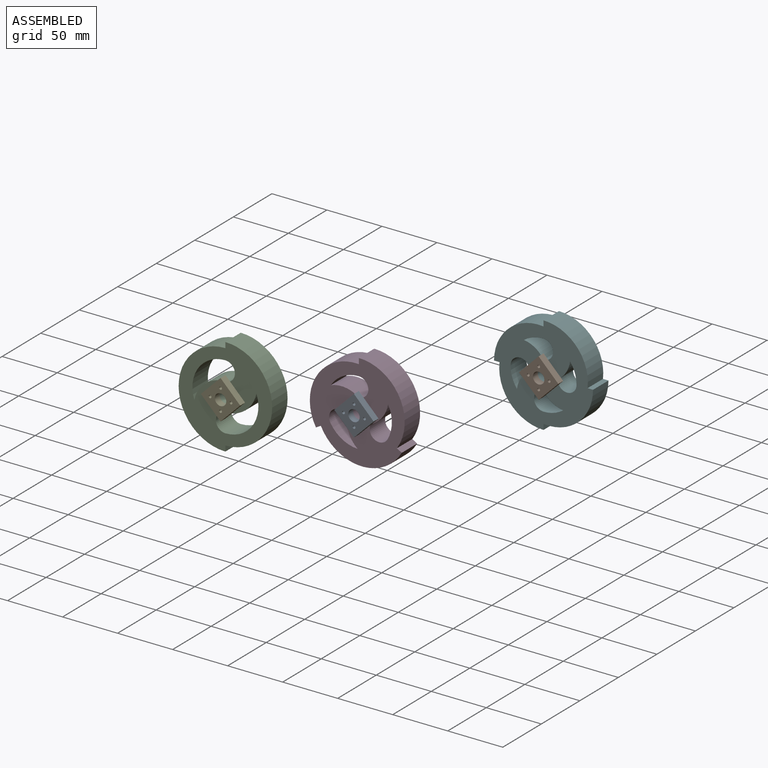
[diagram: assembled view]
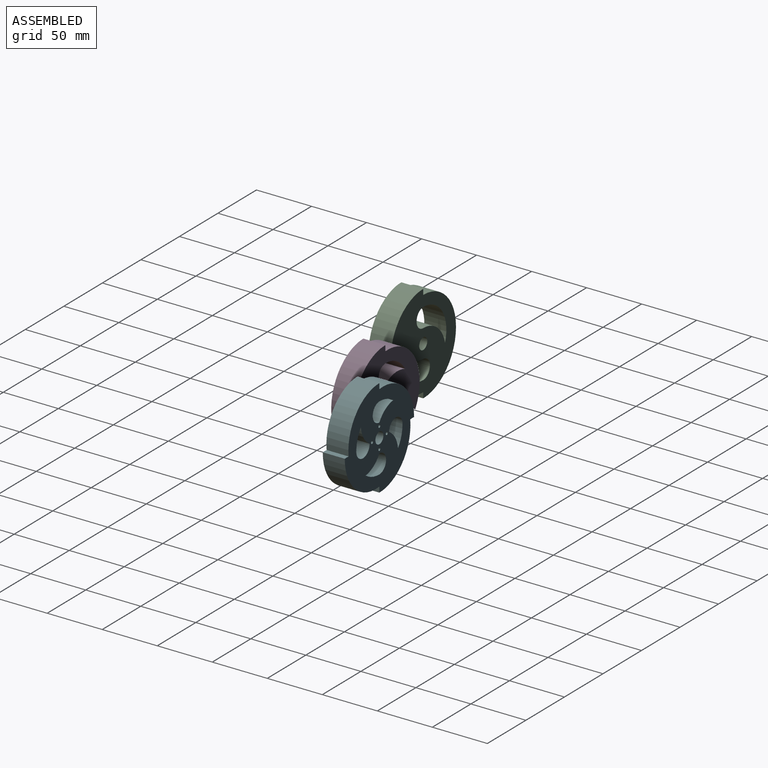
[diagram: assembled view, second angle]
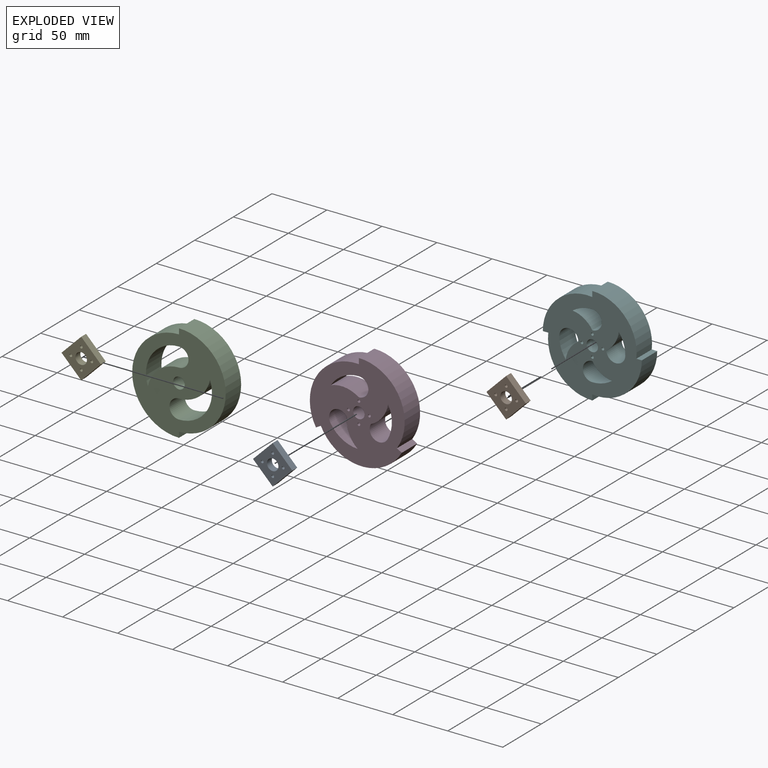
[diagram: exploded view]
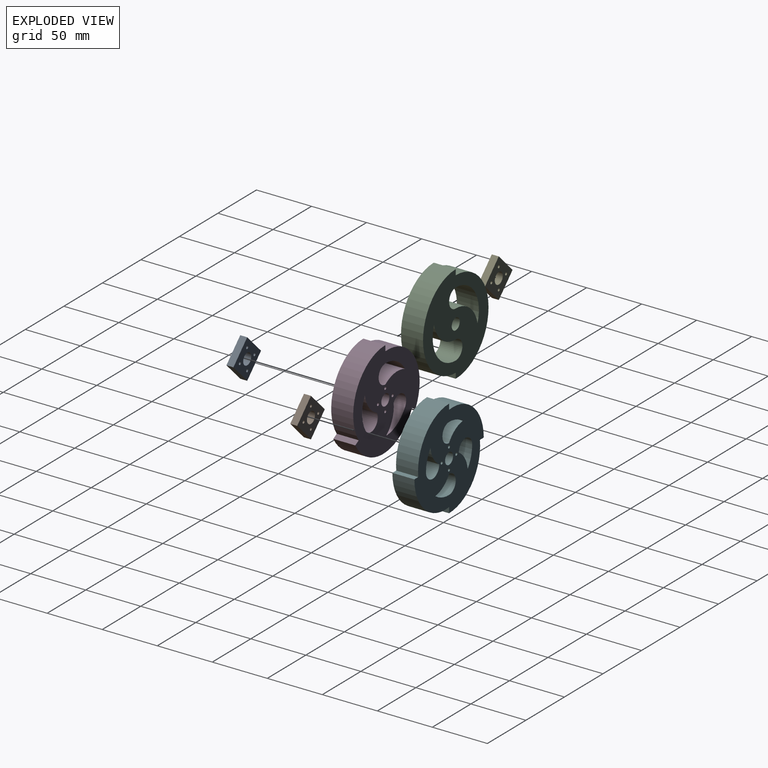
[diagram: exploded view, second angle]
ASSEMBLY  parts=6 mates=3
PART A: 11 faces, bbox 35.8x6.4x35.8 mm
  f0: plane 17.88x17.88mm, normal (-0.71,0,0.71), area 160.6mm2, adj f1,f6,f9,f10
  f1: plane 17.88x17.88mm, normal (-0.71,0,-0.71), area 160.6mm2, adj f0,f2,f9,f10
  f2: plane 17.88x17.88mm, normal (0.71,0,-0.71), area 160.6mm2, adj f1,f6,f9,f10
  f3: cylinder r=1.27mm len=6.35mm, axis (0,1,0), area 50.7mm2, adj f9,f10
  f4: cylinder r=1.27mm len=6.35mm, axis (0,1,0), area 50.7mm2, adj f9,f10
  f5: cylinder r=1.27mm len=6.35mm, axis (0,1,0), area 50.7mm2, adj f9,f10
  f6: plane 17.88x17.88mm, normal (0.71,0,0.71), area 160.6mm2, adj f0,f2,f9,f10
  f7: cylinder r=1.27mm len=6.35mm, axis (0,1,0), area 50.7mm2, adj f9,f10
  f8: cylinder r=5.21mm len=10.41mm, axis (0,1,0), area 207.8mm2, adj f9,f10
  f9: plane 35.76x35.76mm, normal (0,-1,0), area 534mm2, adj f0,f1,f2,f3,f4,f5,f6,f7
  f10: plane 35.76x35.76mm, normal (0,1,0), area 534mm2, adj f0,f1,f2,f3,f4,f5,f6,f7
PART B: same geometry as A
PART C: 13 faces, bbox 85x20x90 mm
  f0: cylinder r=30mm len=40.17mm, axis (0,1,0), area 1150mm2, adj f1,f10,f11,f12
  f1: cylinder r=8.65mm len=20mm, axis (0,1,0), area 543.5mm2, adj f0,f10,f11,f12
  f2: cylinder r=30mm len=40.17mm, axis (0,1,0), area 1150mm2, adj f3,f8,f11,f12
  f3: cylinder r=8.65mm len=20mm, axis (0,1,0), area 543.5mm2, adj f2,f8,f11,f12
  f4: cylinder r=42.5mm len=85mm, axis (0,1,0), area 2670.4mm2, adj f5,f9,f11,f12
  f5: plane 20x5mm, normal (1,0,0), area 100mm2, adj f4,f6,f11,f12
  f6: cylinder r=42.5mm len=85mm, axis (0,1,0), area 2670.4mm2, adj f5,f9,f11,f12
  f7: cylinder r=5.21mm len=20mm, axis (0,1,0), area 654.3mm2, adj f11,f12
  f8: cylinder r=28.85mm len=28.22mm, axis (0,1,0), area 785.9mm2, adj f2,f3,f11,f12
  f9: plane 20x5mm, normal (-1,0,0), area 100mm2, adj f4,f6,f11,f12
  f10: cylinder r=28.85mm len=28.22mm, axis (0,1,0), area 785.9mm2, adj f0,f1,f11,f12
  f11: plane 90x85mm, normal (0,-1,0), area 4307.1mm2, adj f0,f1,f2,f3,f4,f5,f6,f7
  f12: plane 90x85mm, normal (0,1,0), area 4307.1mm2, adj f0,f1,f2,f3,f4,f5,f6,f7
PART D: 26 faces, bbox 86.2x20x88.3 mm
  f0: cylinder r=30mm len=29.01mm, axis (0,1,0), area 605.8mm2, adj f1,f19,f24,f25
  f1: cylinder r=8.65mm len=20mm, axis (0,1,0), area 543.5mm2, adj f0,f19,f24,f25
  f2: cylinder r=30mm len=24.89mm, axis (0,1,0), area 606.5mm2, adj f3,f20,f24,f25
  f3: plane 20x0mm, normal (0.5,0,-0.87), area 0mm2, adj f2,f4,f24,f25
  f4: cylinder r=8.65mm len=20mm, axis (0,1,0), area 539.8mm2, adj f3,f5,f24,f25
  f5: cylinder r=12.7mm len=20mm, axis (0,1,0), area 0.3mm2, adj f4,f6,f24,f25
  f6: cylinder r=8.65mm len=20mm, axis (0,1,0), area 1.5mm2, adj f5,f20,f24,f25
  f7: cylinder r=26.83mm len=25.5mm, axis (0,1,0), area 536.1mm2, adj f8,f21,f24,f25
  f8: cylinder r=30mm len=25.5mm, axis (0,1,0), area 609.6mm2, adj f7,f9,f24,f25
  f9: cylinder r=8.65mm len=20mm, axis (0,1,0), area 543.5mm2, adj f8,f21,f24,f25
  f10: plane 20x5.1mm, normal (-1,0,0), area 102mm2, adj f11,f22,f24,f25
  f11: cylinder r=41.67mm len=62.5mm, axis (0,1,0), area 1803.1mm2, adj f10,f12,f24,f25
  f12: plane 20x4.42mm, normal (0.5,0,-0.87), area 102.1mm2, adj f11,f13,f24,f25
  f13: cylinder r=41.66mm len=73.51mm, axis (0,1,0), area 1802.6mm2, adj f12,f14,f24,f25
  f14: plane 20x4.41mm, normal (0.5,0,0.87), area 101.9mm2, adj f13,f22,f24,f25
  f15: cylinder r=1.27mm len=20mm, axis (0,1,0), area 159.6mm2, adj f24,f25
  f16: cylinder r=1.27mm len=20mm, axis (0,1,0), area 159.6mm2, adj f24,f25
  f17: cylinder r=1.27mm len=20mm, axis (0,1,0), area 159.6mm2, adj f24,f25
  f18: cylinder r=5.21mm len=20mm, axis (0,1,0), area 654.3mm2, adj f24,f25
  f19: cylinder r=26.85mm len=20.36mm, axis (0,1,0), area 533.9mm2, adj f0,f1,f24,f25
  f20: cylinder r=26.82mm len=23.55mm, axis (0,1,0), area 532.2mm2, adj f2,f6,f24,f25
  f21: plane 20x0.11mm, normal (-1,0,0), area 2.2mm2, adj f7,f9,f24,f25
  f22: cylinder r=41.67mm len=64.97mm, axis (0,1,0), area 1803.5mm2, adj f10,f14,f24,f25
  f23: cylinder r=1.27mm len=20mm, axis (0,1,0), area 159.6mm2, adj f24,f25
  f24: plane 88.33x86.22mm, normal (0,-1,0), area 4636.1mm2, adj f0,f1,f2,f3,f4,f5,f6,f7
  f25: plane 88.33x86.22mm, normal (0,1,0), area 4636.1mm2, adj f0,f1,f2,f3,f4,f5,f6,f7
PART E: same geometry as A
PART F: 27 faces, bbox 90x20x90 mm
  f0: cylinder r=24.29mm len=20mm, axis (0,1,0), area 438.3mm2, adj f1,f19,f25,f26
  f1: cylinder r=30mm len=20mm, axis (0,1,0), area 382mm2, adj f0,f19,f25,f26
  f2: cylinder r=24.29mm len=20mm, axis (0,1,0), area 438.3mm2, adj f3,f20,f25,f26
  f3: cylinder r=30mm len=20mm, axis (0,1,0), area 382mm2, adj f2,f20,f25,f26
  f4: cylinder r=24.29mm len=20mm, axis (0,1,0), area 438.3mm2, adj f5,f21,f25,f26
  f5: cylinder r=30mm len=20mm, axis (0,1,0), area 382mm2, adj f4,f21,f25,f26
  f6: cylinder r=30mm len=20mm, axis (0,1,0), area 382mm2, adj f7,f22,f25,f26
  f7: extruded ~20x17.3mm, area 543.5mm2, adj f6,f22,f25,f26
  f8: plane 20x5mm, normal (-1,0,0), area 100mm2, adj f9,f23,f25,f26
  f9: cylinder r=40.37mm len=45mm, axis (0,1,0), area 1359mm2, adj f8,f10,f25,f26
  f10: plane 20x5mm, normal (0,0,-1), area 100mm2, adj f9,f11,f25,f26
  f11: cylinder r=40.28mm len=45mm, axis (0,1,0), area 1360mm2, adj f10,f12,f25,f26
  f12: plane 20x5mm, normal (1,0,0), area 100mm2, adj f11,f13,f25,f26
  f13: cylinder r=40.32mm len=45mm, axis (0,1,0), area 1359.5mm2, adj f12,f14,f25,f26
  f14: plane 20x5mm, normal (0,0,1), area 100mm2, adj f13,f23,f25,f26
  f15: cylinder r=1.27mm len=20mm, axis (0,1,0), area 159.6mm2, adj f25,f26
  f16: cylinder r=1.27mm len=20mm, axis (0,1,0), area 159.6mm2, adj f25,f26
  f17: cylinder r=1.27mm len=20mm, axis (0,1,0), area 159.6mm2, adj f25,f26
  f18: cylinder r=1.27mm len=20mm, axis (0,1,0), area 159.6mm2, adj f25,f26
  f19: cylinder r=8.65mm len=20mm, axis (0,1,0), area 543.5mm2, adj f0,f1,f25,f26
  f20: cylinder r=8.65mm len=20mm, axis (0,1,0), area 543.5mm2, adj f2,f3,f25,f26
  f21: cylinder r=8.65mm len=20mm, axis (0,1,0), area 543.5mm2, adj f4,f5,f25,f26
  f22: cylinder r=24.29mm len=20mm, axis (0,1,0), area 438.3mm2, adj f6,f7,f25,f26
  f23: cylinder r=40.28mm len=45mm, axis (0,1,0), area 1360mm2, adj f8,f14,f25,f26
  f24: cylinder r=5.21mm len=20mm, axis (0,1,0), area 654.3mm2, adj f25,f26
  f25: plane 90x90mm, normal (0,-1,0), area 4722.6mm2, adj f0,f1,f2,f3,f4,f5,f6,f7
  f26: plane 90x90mm, normal (0,1,0), area 4722.6mm2, adj f0,f1,f2,f3,f4,f5,f6,f7
PLACE A t=(-14.16,-17.36,9.01)mm
PLACE B t=(100.97,57.89,41.94)mm
PLACE C t=(-111.25,-31.22,-19.03)mm
PLACE D t=(-13.68,2.64,-18.96)mm
PLACE E t=(-111.72,-51.22,8.94)mm
PLACE F t=(101.45,77.89,13.97)mm
MATE fastened C.f7 <-> E.f8  axis (0,-1,0) through (-111.25,-51.22,-19.03)mm
MATE fastened D.f18 <-> A.f8  axis (0,-1,0) through (-13.68,-17.36,-18.96)mm
MATE fastened B.f8 <-> F.f24  axis (0,1,0) through (101.45,57.89,13.97)mm
